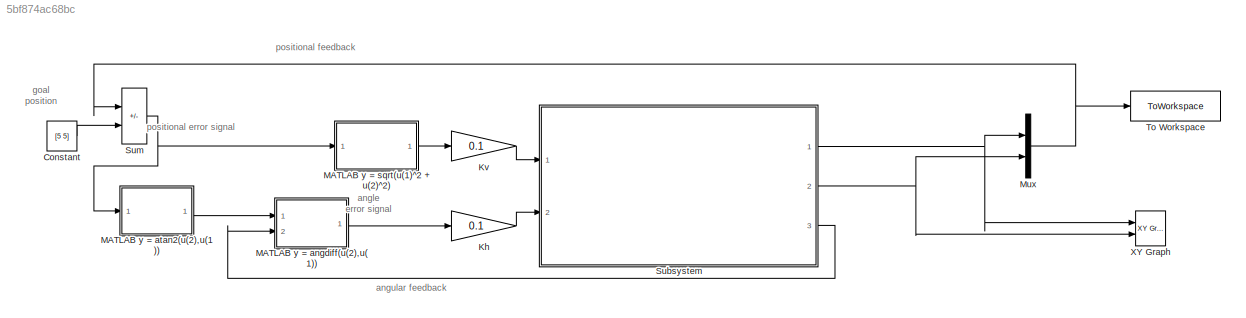
MODEL slx_5bf874ac68bc
KIND model
CONFIG AbsTol = auto
CONFIG EnableMultiTasking = off
CONFIG FixedStep = auto
CONFIG MaxStep = auto
CONFIG MinStep = auto
CONFIG RelTol = 1e-3
CONFIG SampleTimeConstraint = Unconstrained
CONFIG SolverName = VariableStepAuto
CONFIG StartTime = 0.0
CONFIG StopTime = 50
BLOCK [Constant] Constant
  Value = [5 5]
BLOCK [Gain] Kh
  Gain = 0.1
BLOCK [Gain] Kv
  Gain = 0.1
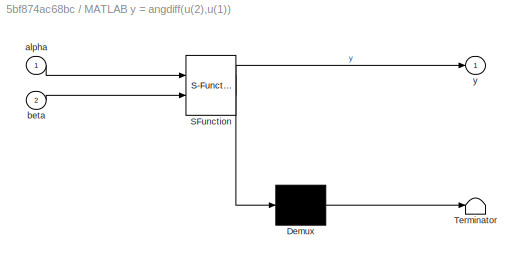
BLOCK [SubSystem] MATLAB y = angdiff(u(2),u(1))
  ErrorFcn = Stateflow.Translate.translate
  PermitHierarchicalResolution = ExplicitOnly
  Ports = [2, 1]
  RequestExecContextInheritance = off
  SFBlockType = MATLAB Function
  TreatAsAtomicUnit = on
BLOCK [Demux] MATLAB y = angdiff(u(2),u(1))/ Demux 
  Outputs = 1
  Ports = [1, 1]
BLOCK [S-Function] MATLAB y = angdiff(u(2),u(1))/ SFunction 
  EnableBusSupport = on
  FunctionName = sf_sfun
  PortCounts = [2 2]
  Ports = [2, 2]
  SFcnIsStateOwnerBlock = off
  SFunctionDeploymentMode = off
  Tag = Stateflow S-Function 2
BLOCK [Terminator] MATLAB y = angdiff(u(2),u(1))/ Terminator 
BLOCK [Inport] MATLAB y = angdiff(u(2),u(1))/alpha
BLOCK [Inport] MATLAB y = angdiff(u(2),u(1))/beta
  Port = 2
BLOCK [Outport] MATLAB y = angdiff(u(2),u(1))/y
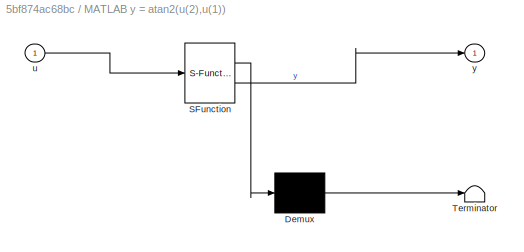
BLOCK [SubSystem] MATLAB y = atan2(u(2),u(1))
  ErrorFcn = Stateflow.Translate.translate
  PermitHierarchicalResolution = ExplicitOnly
  Ports = [1, 1]
  RequestExecContextInheritance = off
  SFBlockType = MATLAB Function
  TreatAsAtomicUnit = on
BLOCK [Demux] MATLAB y = atan2(u(2),u(1))/ Demux 
  Outputs = 1
  Ports = [1, 1]
BLOCK [S-Function] MATLAB y = atan2(u(2),u(1))/ SFunction 
  EnableBusSupport = on
  FunctionName = sf_sfun
  PortCounts = [1 2]
  Ports = [1, 2]
  SFcnIsStateOwnerBlock = off
  SFunctionDeploymentMode = off
  Tag = Stateflow S-Function 3
BLOCK [Terminator] MATLAB y = atan2(u(2),u(1))/ Terminator 
BLOCK [Inport] MATLAB y = atan2(u(2),u(1))/u
BLOCK [Outport] MATLAB y = atan2(u(2),u(1))/y
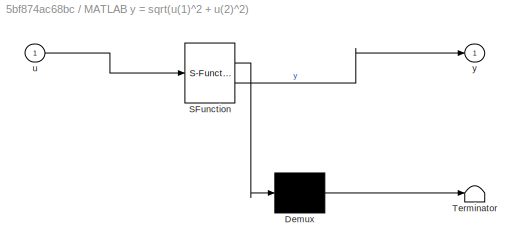
BLOCK [SubSystem] MATLAB y = sqrt(u(1)^2 + u(2)^2)
  ErrorFcn = Stateflow.Translate.translate
  PermitHierarchicalResolution = ExplicitOnly
  Ports = [1, 1]
  RequestExecContextInheritance = off
  SFBlockType = MATLAB Function
  TreatAsAtomicUnit = on
BLOCK [Demux] MATLAB y = sqrt(u(1)^2 + u(2)^2)/ Demux 
  Outputs = 1
  Ports = [1, 1]
BLOCK [S-Function] MATLAB y = sqrt(u(1)^2 + u(2)^2)/ SFunction 
  EnableBusSupport = on
  FunctionName = sf_sfun
  PortCounts = [1 2]
  Ports = [1, 2]
  SFcnIsStateOwnerBlock = off
  SFunctionDeploymentMode = off
  Tag = Stateflow S-Function 1
BLOCK [Terminator] MATLAB y = sqrt(u(1)^2 + u(2)^2)/ Terminator 
BLOCK [Inport] MATLAB y = sqrt(u(1)^2 + u(2)^2)/u
BLOCK [Outport] MATLAB y = sqrt(u(1)^2 + u(2)^2)/y
BLOCK [Mux] Mux
  DisplayOption = bar
  Inputs = 2
  Ports = [2, 1]
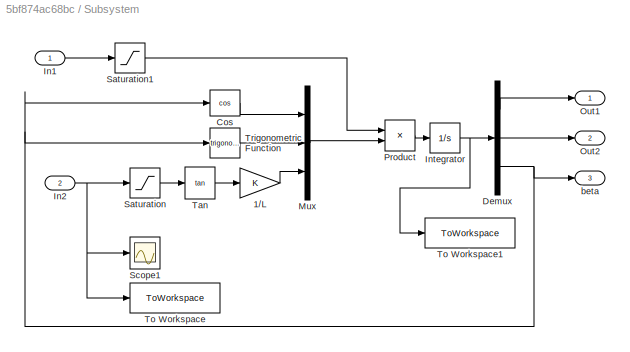
BLOCK [SubSystem] Subsystem
  Ports = [2, 3]
  RequestExecContextInheritance = off
BLOCK [Gain] Subsystem/1//L
BLOCK [Trigonometry] Subsystem/Cos
  Operator = cos
  Ports = [1, 1]
BLOCK [Demux] Subsystem/Demux
  Outputs = 3
  Ports = [1, 3]
BLOCK [Inport] Subsystem/In1
BLOCK [Inport] Subsystem/In2
  Port = 2
BLOCK [Integrator] Subsystem/Integrator
  InitialCondition = [8 5 pi/2]
  Ports = [1, 1]
BLOCK [Mux] Subsystem/Mux
  DisplayOption = bar
  Inputs = 3
  Ports = [3, 1]
BLOCK [Outport] Subsystem/Out1
BLOCK [Outport] Subsystem/Out2
  Port = 2
BLOCK [Product] Subsystem/Product
  Ports = [2, 1]
BLOCK [Saturate] Subsystem/Saturation
  LowerLimit = -1
  UpperLimit = 1
BLOCK [Saturate] Subsystem/Saturation1
  LowerLimit = -1
  UpperLimit = 1
BLOCK [Scope] Subsystem/Scope1
  Floating = off
  NumInputPorts = 1
  Ports = [1]
  ScopeSpecificationString = Simulink.scopes.TimeScopeBlockCfg('CurrentConfiguration', extmgr.ConfigurationSet(extmgr.Configuration('Core','General UI',true),extmgr.Configuration('Core','Source UI',true),extmgr.Configuration('Sources','WiredSimulink',true,'DataLoggingVariableName','ScopeData1'),extmgr.Configuration('Visuals','Time Domain',true,'SerializedDisplays',{struct('MinYLimReal','-0.625','MaxYLimReal','0.625','YLabelRe...<+1350ch>
BLOCK [Trigonometry] Subsystem/Tan
  Operator = tan
  Ports = [1, 1]
BLOCK [ToWorkspace] Subsystem/To Workspace
  FixptAsFi = on
  MaxDataPoints = inf
  Ports = [1]
  SampleTime = -1
  SaveFormat = Timeseries
  VariableName = in
BLOCK [ToWorkspace] Subsystem/To Workspace1
  FixptAsFi = on
  MaxDataPoints = inf
  Ports = [1]
  SampleTime = -1
  SaveFormat = Timeseries
  VariableName = out
BLOCK [Trigonometry] Subsystem/Trigonometric Function
  Ports = [1, 1]
BLOCK [Outport] Subsystem/beta
  Port = 3
BLOCK [Sum] Sum
  IconShape = rectangular
  Inputs = |-+
  Ports = [2, 1]
BLOCK [ToWorkspace] To Workspace
  FixptAsFi = on
  MaxDataPoints = inf
  Ports = [1]
  SampleTime = -1
  SaveFormat = Timeseries
  VariableName = simout
BLOCK [Reference] XY Graph  REF=simulink/Sinks/XY Graph
  Ports = [2]
  SourceBlock = simulink/Sinks/XY Graph
  SourceProductBaseCode = SL
  SourceType = XY scope.
ANNOTATION (root): angle error signal
ANNOTATION (root): goal position
ANNOTATION (root): angular feedback
ANNOTATION (root): positional error signal
ANNOTATION (root): positional feedback
LINE Constant:1 -> Sum:2
LINE Kh:1 -> Subsystem:2
LINE Kv:1 -> Subsystem:1
LINE MATLAB y = angdiff(u(2),u(1)):1 -> Kh:1
LINE MATLAB y = atan2(u(2),u(1)):1 -> MATLAB y = angdiff(u(2),u(1)):1
LINE MATLAB y = sqrt(u(1)^2 + u(2)^2):1 -> Kv:1
NET Mux:1 -> Sum:1, To Workspace:1
LINE Subsystem/1//L:1 -> Subsystem/Mux:3
LINE Subsystem/Cos:1 -> Subsystem/Mux:1
LINE Subsystem/Demux:1 -> Subsystem/Out1:1
LINE Subsystem/Demux:2 -> Subsystem/Out2:1
NET Subsystem/Demux:3 -> Subsystem/Cos:1, Subsystem/Trigonometric Function:1, Subsystem/beta:1
LINE Subsystem/In1:1 -> Subsystem/Saturation1:1
NET Subsystem/In2:1 -> Subsystem/Saturation:1, Subsystem/Scope1:1, Subsystem/To Workspace:1
NET Subsystem/Integrator:1 -> Subsystem/Demux:1, Subsystem/To Workspace1:1
LINE Subsystem/Mux:1 -> Subsystem/Product:2
LINE Subsystem/Product:1 -> Subsystem/Integrator:1
LINE Subsystem/Saturation1:1 -> Subsystem/Product:1
LINE Subsystem/Saturation:1 -> Subsystem/Tan:1
LINE Subsystem/Tan:1 -> Subsystem/1//L:1
LINE Subsystem/Trigonometric Function:1 -> Subsystem/Mux:2
NET Subsystem:1 -> Mux:1, XY Graph:1
NET Subsystem:2 -> Mux:2, XY Graph:2
LINE Subsystem:3 -> MATLAB y = angdiff(u(2),u(1)):2
NET Sum:1 -> MATLAB y = atan2(u(2),u(1)):1, MATLAB y = sqrt(u(1)^2 + u(2)^2):1
note: NET lines group one-source signal fan-out (src -> all destinations, sorted); 1:1 wires keep LINE
CHART MATLAB y = angdiff(u(2),u(1)) states=1 transitions=1
  STATE_LABEL 'eML_blk_kernel()'
  STATE_LABEL 'SCRIPT:\nfunction y= fcn(alpha, beta)\n\n    gama=alpha-beta;\n\n    if abs(gama)>2*pi\n        gama1=gama-fix(gama/2/pi)*2*pi; %removes the decimals\n    else\n        gama1=gama;\n    end\n\n    if abs(gama1)>pi\n       if gama1>0\n           y=gama1-2*pi;\n       else\n           y=gama1+2*pi;\n       end\n    else\n        y=gama1;\n    end\n\nend\n    \n'
CHART MATLAB y = atan2(u(2),u(1)) states=1 transitions=1
  STATE_LABEL 'eML_blk_kernel()'
  STATE_LABEL 'SCRIPT:\nfunction y = fcn(u)\n\ny = atan2(u(2),u(1));\n'
CHART MATLAB y = sqrt(u(1)^2 + u(2)^2) states=1 transitions=1
  STATE_LABEL 'eML_blk_kernel()'
  STATE_LABEL 'SCRIPT:\nfunction y = fcn(u)\n\ny = sqrt(u(1)^2 + u(2)^2);\n'
CHART  states=0 transitions=0
CHART  states=0 transitions=0
CHART  states=0 transitions=0
